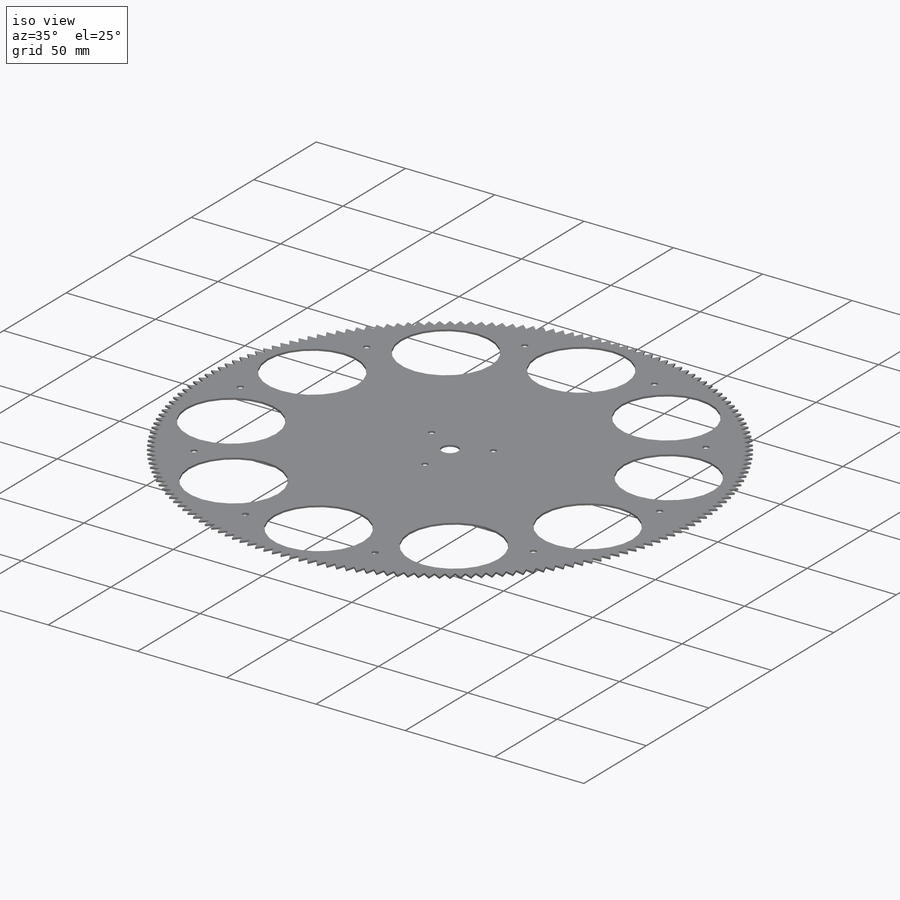
[diagram: iso view]
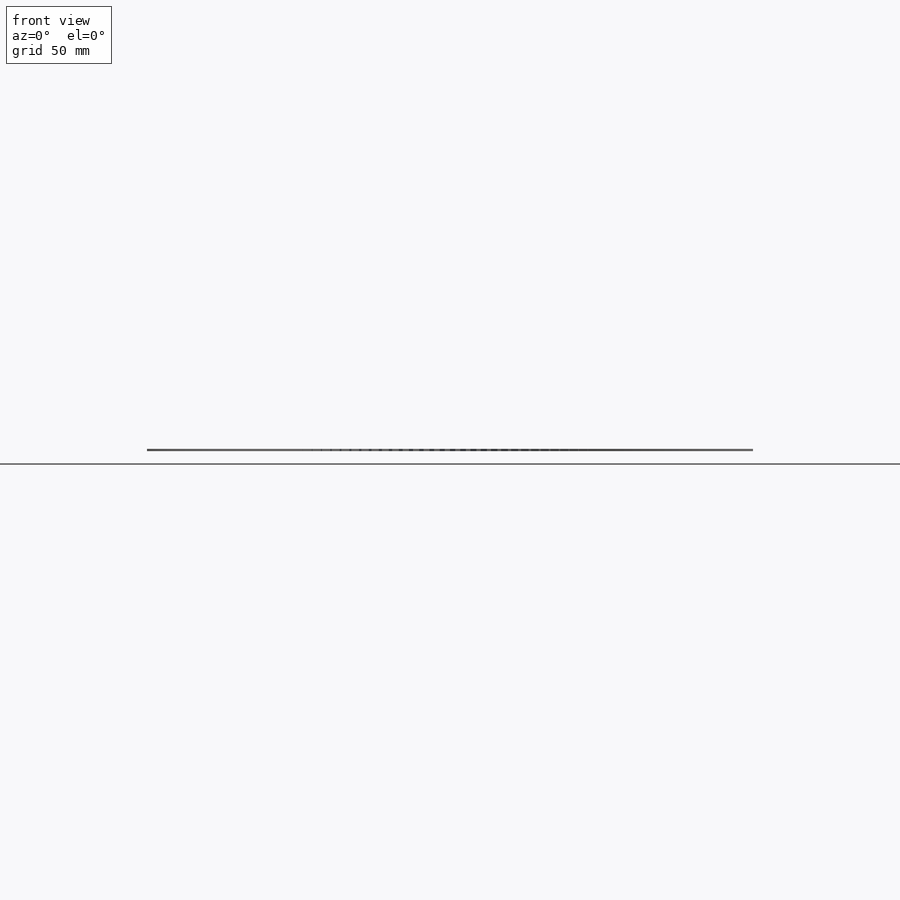
[diagram: front view]
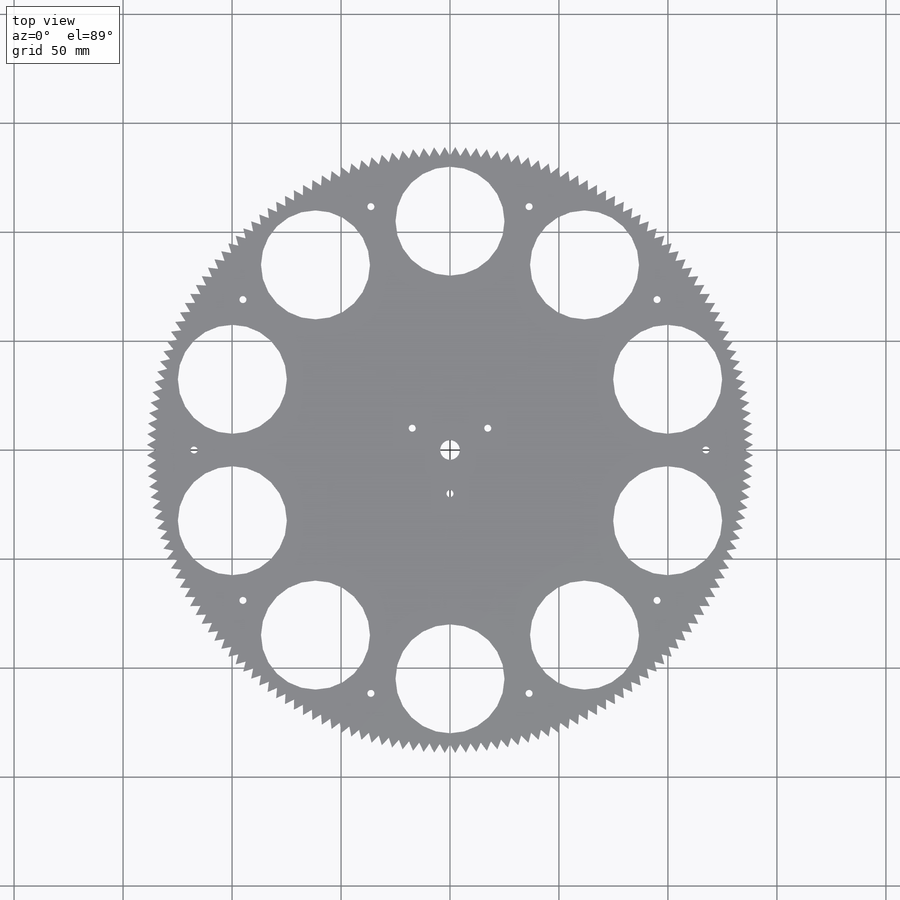
[diagram: top view]
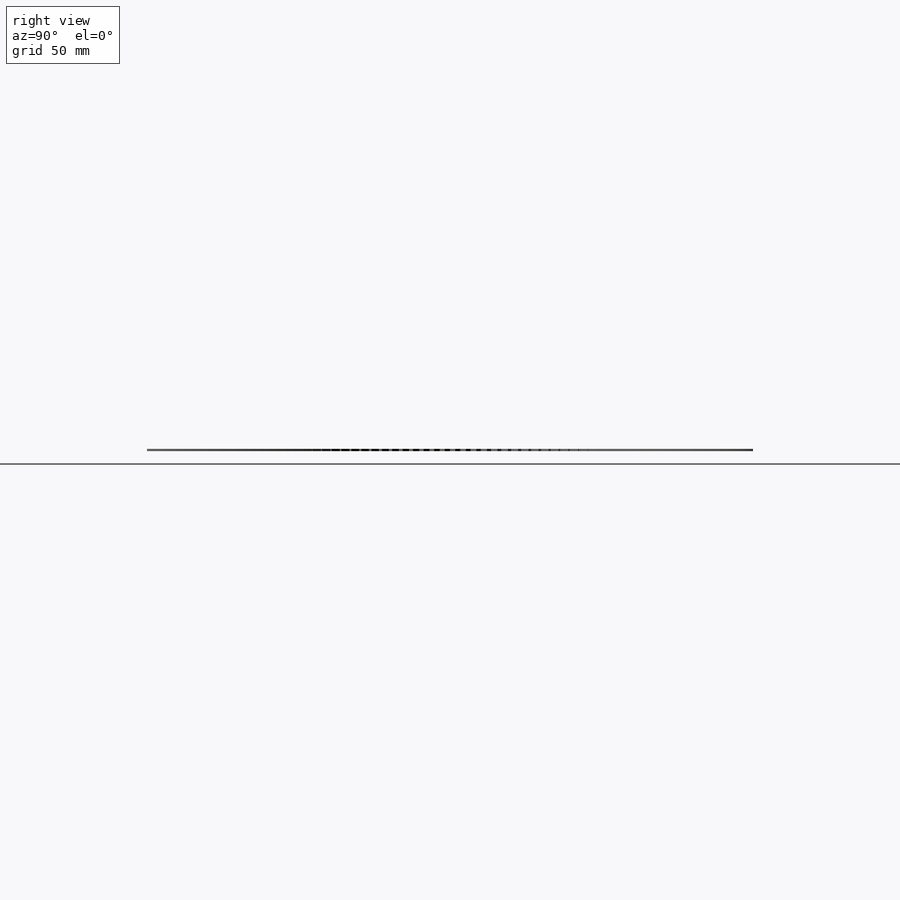
[diagram: right view]
SOLIDWORKS PART (.sldprt)
format: sldprt  version: not decoded by parser v0  size: 1,350,144 bytes
history: native  units: mm
features: sketch x8, cut_extrude x4, sheet_metal_op x3, material x1 + 1 further entry (+11 scaffold rows collapsed; 1 parser-record rows omitted)
feature tree (29):
  scaffold x11  (default folders/planes/origin — collapsed)
  material  "6061 Alloy"
  sketch  "Sketch1"  dims[D1=270.0mm]
  sketch  "Sketch2"  dims[D2=50.0mm D1=5.0mm D3=10.0]
  sketch  "Sketch3"  dims[c1.D1=~11.245741mm c2.D1=~285.681673deg c3.D1=~1047.197551mm c3.D2=~34.906585mm c3.D4=~34.906585mm c3.D3=180.0]
  sheet_metal_op  "Sheet-Metal1"
  sheet_metal_op  "Base-Flange1"
  cut_extrude  "Cut-Extrude1"  [1 undecoded]
  sketch  "Sketch7"  dims[D1=~21.875876mm]
  cut_extrude  "Cut-Extrude2"  [1 undecoded]
  sketch  "Sketch8"  dims[D1=~4.813368mm D2=10.0]
  cut_extrude  "Cut-Extrude3"  [1 undecoded]
  sketch  "Sketch9"  dims[c1.D2=~13.740451mm c1.D1=20.0mm c2.D2=3.0]
  cut_extrude  "Cut-Extrude4"  [1 undecoded]
  sheet_metal_op  "Tab1"
  "Flat-Pattern1"
  sketch  "Bend-Lines1"
  sketch  "Bounding-Box1"
  parser-record x1  (decoder bookkeeping rows leaked as tree rows — omitted from the tree; the rows remain in map.json)
decode coverage: 6 of 15 modeling features carry decoded parameters; 1 rows unclassified (native names shown)
note: ~ marks probable driven/reference dimensions
note: 4 parameter values undecoded
summary: no parameter record found for 4 features
note: suppression state not decoded; provenance and decode notes live in map.json
